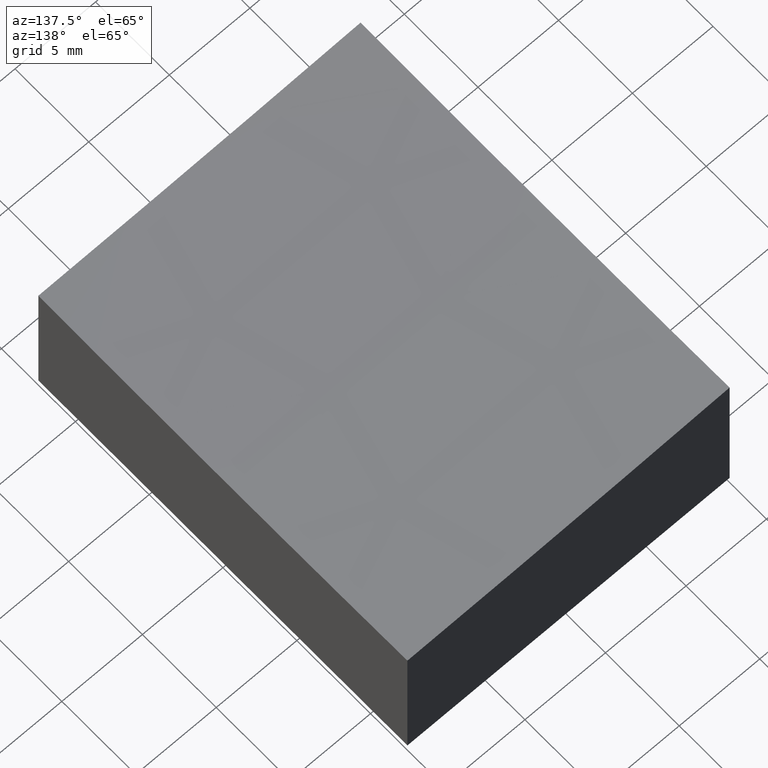
[diagram: clean part render]
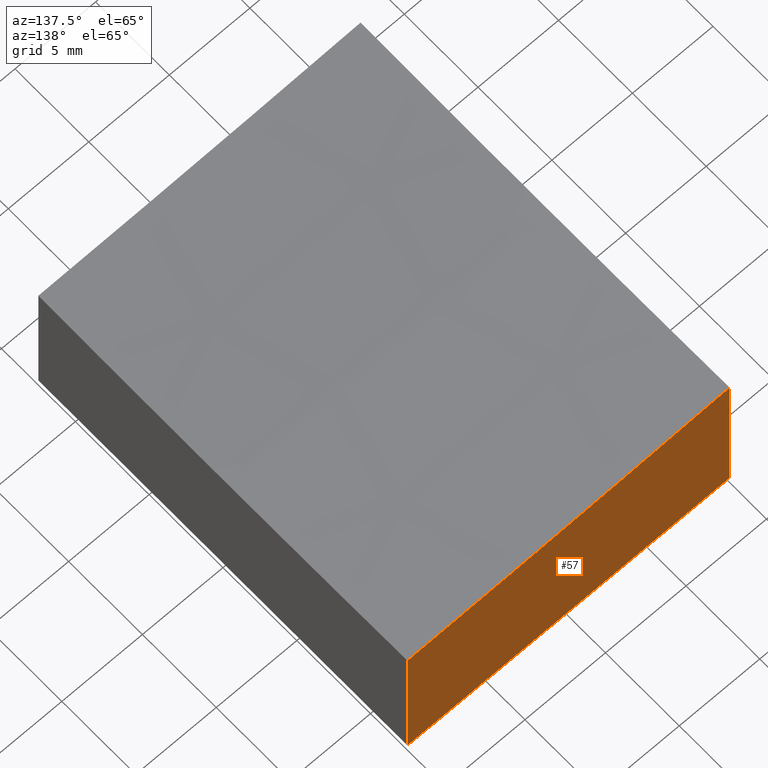
[diagram: same view with one face highlighted and labeled with its STEP entity id]
A machine part, auxiliary view. The second image highlights one B-rep face of the part: STEP entity #57.
In plain terms, the highlighted planar face has unit normal (0, -1, 0).
Its self-contained STEP definition (entity closure, byte-faithful):
#1 = EDGE_LOOP ( 'NONE', ( #146, #249, #151, #34 ) ) ;
#7 = CARTESIAN_POINT ( 'NONE',  ( -9.999999999999998224, 12.49999999999999645, -10.00000000000000000 ) ) ;
#15 = CIRCLE ( 'NONE', #145, 499.8437255783051114 ) ;
#28 = DIRECTION ( 'NONE',  ( 1.000000000000000000, 1.734723475976807094E-16, 0.000000000000000000 ) ) ;
#34 = ORIENTED_EDGE ( 'NONE', *, *, #248, .T. ) ;
#40 = EDGE_CURVE ( 'NONE', #129, #183, #65, .T. ) ;
#50 = CARTESIAN_POINT ( 'NONE',  ( 10.00000000000000178, 12.50000000000000000, 10.00000000000000000 ) ) ;
#52 = CARTESIAN_POINT ( 'NONE',  ( 10.00000000000000178, 12.50000000000000000, -10.00000000000000000 ) ) ;
#57 = ADVANCED_FACE ( 'NONE', ( #268 ), #201, .F. ) ;
#65 = LINE ( 'NONE', #50, #142 ) ;
#76 = AXIS2_PLACEMENT_3D ( 'NONE', #228, #118, #28 ) ;
#83 = EDGE_CURVE ( 'NONE', #165, #217, #143, .T. ) ;
#99 = CARTESIAN_POINT ( 'NONE',  ( -9.999999999999998224, 12.49999999999999645, 10.00000000000000000 ) ) ;
#102 = DIRECTION ( 'NONE',  ( -0.000000000000000000, -0.000000000000000000, -1.000000000000000000 ) ) ;
#117 = VECTOR ( 'NONE', #102, 1000.000000000000000 ) ;
#118 = DIRECTION ( 'NONE',  ( 1.734723475976807094E-16, -1.000000000000000000, 0.000000000000000000 ) ) ;
#129 = VERTEX_POINT ( 'NONE', #180 ) ;
#142 = VECTOR ( 'NONE', #163, 1000.000000000000000 ) ;
#143 = LINE ( 'NONE', #99, #117 ) ;
#145 = AXIS2_PLACEMENT_3D ( 'NONE', #240, #259, #239 ) ;
#146 = ORIENTED_EDGE ( 'NONE', *, *, #83, .F. ) ;
#151 = ORIENTED_EDGE ( 'NONE', *, *, #40, .T. ) ;
#157 = DIRECTION ( 'NONE',  ( -1.000000000000000000, -1.734723475976807094E-16, 0.000000000000000000 ) ) ;
#158 = VECTOR ( 'NONE', #157, 1000.000000000000000 ) ;
#163 = DIRECTION ( 'NONE',  ( -0.000000000000000000, -0.000000000000000000, -1.000000000000000000 ) ) ;
#165 = VERTEX_POINT ( 'NONE', #244 ) ;
#180 = CARTESIAN_POINT ( 'NONE',  ( 10.00000000000000178, 12.50000000000000000, -0.8187171365233725240 ) ) ;
#183 = VERTEX_POINT ( 'NONE', #52 ) ;
#191 = LINE ( 'NONE', #256, #158 ) ;
#201 = PLANE ( 'NONE',  #76 ) ;
#217 = VERTEX_POINT ( 'NONE', #7 ) ;
#224 = EDGE_CURVE ( 'NONE', #165, #129, #15, .T. ) ;
#228 = CARTESIAN_POINT ( 'NONE',  ( 10.00000000000000178, 12.50000000000000000, 10.00000000000000000 ) ) ;
#239 = DIRECTION ( 'NONE',  ( 1.000000000000000000, 1.735265831305355409E-16, 0.000000000000000000 ) ) ;
#240 = CARTESIAN_POINT ( 'NONE',  ( 15.00000000000006217, 12.50000000000000178, 499.0000000000000000 ) ) ;
#244 = CARTESIAN_POINT ( 'NONE',  ( -9.999999999999998224, 12.49999999999999645, -0.2181386928964412775 ) ) ;
#248 = EDGE_CURVE ( 'NONE', #183, #217, #191, .T. ) ;
#249 = ORIENTED_EDGE ( 'NONE', *, *, #224, .T. ) ;
#256 = CARTESIAN_POINT ( 'NONE',  ( 10.00000000000000178, 12.50000000000000000, -10.00000000000000000 ) ) ;
#259 = DIRECTION ( 'NONE',  ( 1.734723475976807094E-16, -1.000000000000000000, 0.000000000000000000 ) ) ;
#268 = FACE_OUTER_BOUND ( 'NONE', #1, .T. ) ;